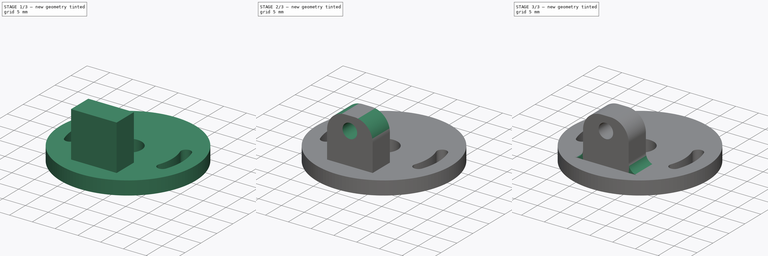
[diagram: build sequence overview — one tinted view per stage of 3, left to right]
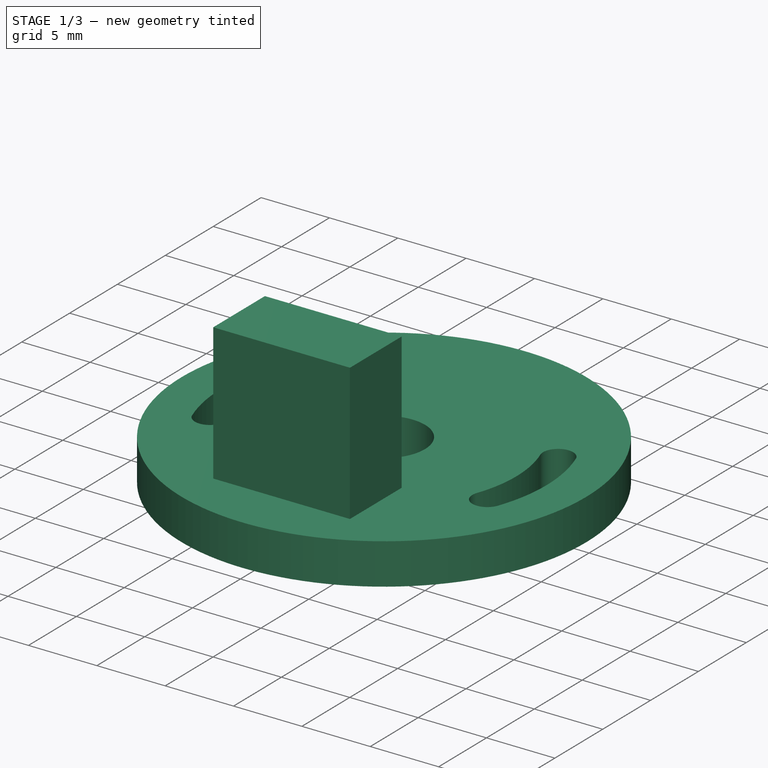
[diagram: stage 1 of 3 — iso view after this stage's code; geometry added in this stage tinted green]
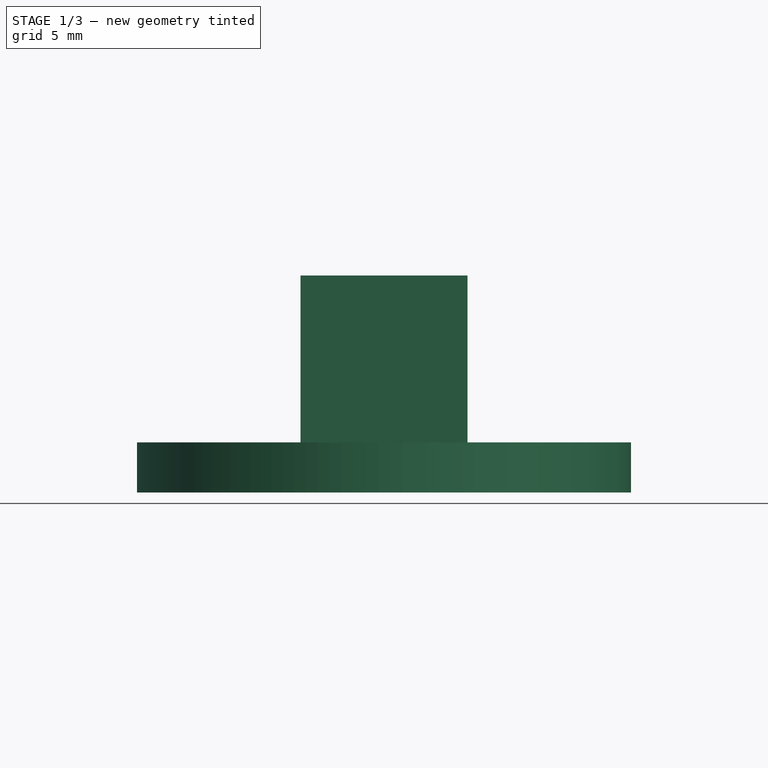
[diagram: stage 1 of 3 — front view after this stage's code; geometry added in this stage tinted green]
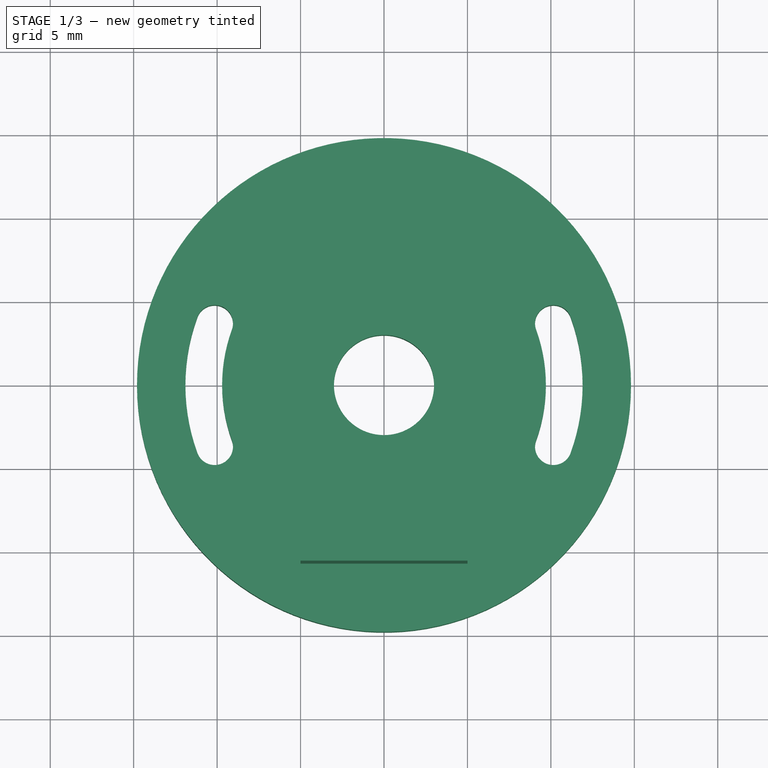
[diagram: stage 1 of 3 — top view after this stage's code; geometry added in this stage tinted green]
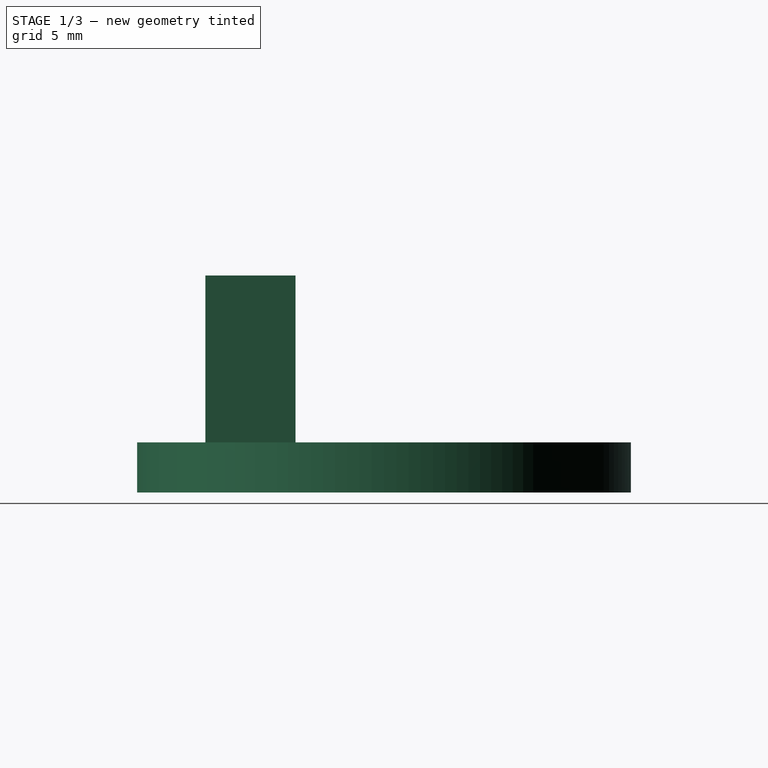
[diagram: stage 1 of 3 — right view after this stage's code; geometry added in this stage tinted green]
FCSTD DOCUMENT  (FreeCAD 0.16R6712 (Git))
Label: lidar_support
License: All rights reserved
LicenseURL: http://en.wikipedia.org/wiki/All_rights_reserved
objects: Sketcher::SketchObject×4, PartDesign::Fillet×4, PartDesign::Pad×2, PartDesign::Pocket×1
note: 14 computed .brp shape members not serialized (recipe doc carries the construction recipe); baked Part::Feature solids carry a one-line shape summary decoded from their .brp

FEATURE [Sketcher::SketchObject] Sketch
  sketch-geometry (27):
    g0: Circle CenterX=0 CenterY=0 CenterZ=0 NormalX=0 NormalY=0 NormalZ=1 Radius=14.8
    g1: Circle [constr] CenterX=0 CenterY=0 CenterZ=0 NormalX=0 NormalY=0 NormalZ=1 Radius=10.8
    g2: Circle [constr] CenterX=0 CenterY=0 CenterZ=0 NormalX=0 NormalY=0 NormalZ=1 Radius=11.9
    g3: Circle [constr] CenterX=0 CenterY=0 CenterZ=0 NormalX=0 NormalY=0 NormalZ=1 Radius=9.7
    g4: LineSegment [constr] StartX=-13.9075 StartY=5.0619 StartZ=0 EndX=13.9075 EndY=-5.0619 EndZ=0
    g5: LineSegment [constr] StartX=-13.9075 StartY=-5.0619 StartZ=0 EndX=13.9075 EndY=5.0619 EndZ=0
    g6: GeomPoint [constr] X=-11.1823 Y=4.07004 Z=0
    g7: GeomPoint [constr] X=-10.1487 Y=3.69382 Z=0
    g8: GeomPoint [constr] X=-9.11502 Y=3.3176 Z=0
    g9: GeomPoint [constr] X=-9.11502 Y=-3.3176 Z=0
    g10: GeomPoint [constr] X=-10.1487 Y=-3.69382 Z=0
    g11: GeomPoint [constr] X=-11.1823 Y=-4.07004 Z=0
    g12: GeomPoint [constr] X=9.11502 Y=-3.3176 Z=0
    g13: GeomPoint [constr] X=10.1487 Y=-3.69382 Z=0
    g14: GeomPoint [constr] X=11.1823 Y=-4.07004 Z=0
    g15: GeomPoint [constr] X=9.11502 Y=3.3176 Z=0
    g16: GeomPoint [constr] X=10.1487 Y=3.69382 Z=0
    g17: GeomPoint [constr] X=11.1823 Y=4.07004 Z=0
    g18: ArcOfCircle CenterX=-10.1487 CenterY=3.69382 CenterZ=0 NormalX=0 NormalY=0 NormalZ=1 Radius=1.1 StartAngle=5.93412 EndAngle=9.07571
    g19: ArcOfCircle CenterX=-10.1487 CenterY=-3.69382 CenterZ=0 NormalX=0 NormalY=0 NormalZ=1 Radius=1.1 StartAngle=3.49066 EndAngle=6.63225
    g20: ArcOfCircle CenterX=10.1487 CenterY=3.69382 CenterZ=0 NormalX=0 NormalY=0 NormalZ=1 Radius=1.1 StartAngle=0.349066 EndAngle=3.49066
    g21: ArcOfCircle CenterX=10.1487 CenterY=-3.69382 CenterZ=0 NormalX=0 NormalY=0 NormalZ=1 Radius=1.1 StartAngle=2.79253 EndAngle=5.93412
    g22: ArcOfCircle CenterX=0 CenterY=0 CenterZ=0 NormalX=0 NormalY=0 NormalZ=1 Radius=9.7 StartAngle=2.79253 EndAngle=3.49066
    g23: ArcOfCircle CenterX=0 CenterY=0 CenterZ=0 NormalX=0 NormalY=0 NormalZ=1 Radius=11.9 StartAngle=2.79253 EndAngle=3.49066
    g24: ArcOfCircle CenterX=0 CenterY=0 CenterZ=0 NormalX=0 NormalY=0 NormalZ=1 Radius=9.7 StartAngle=5.93412 EndAngle=6.63225
    g25: ArcOfCircle CenterX=0 CenterY=0 CenterZ=0 NormalX=0 NormalY=0 NormalZ=1 Radius=11.9 StartAngle=5.93412 EndAngle=6.63225
    g26: Circle CenterX=0 CenterY=0 CenterZ=0 NormalX=0 NormalY=0 NormalZ=1 Radius=3
  constraints (65):
    c: Coincident(g0,g-1)
    c: Radius(g0) = 14.8
    c: Coincident(g1,g-1)
    c: Coincident(g2,g-1)
    c: Radius(g1) = 10.8
    c: Radius(g2) = 11.9
    c: Coincident(g3,g-1)
    c: Radius(g3) = 9.7
    c: PointOnObject(g4,g0)
    c: PointOnObject(g4,g0)
    c: PointOnObject(g-1,g4)
    c: Angle(g4,g-1) = 0.349066
    c: PointOnObject(g5,g0)
    c: PointOnObject(g5,g0)
    c: PointOnObject(g-1,g5)
    c: Angle(g-1,g5) = 0.349066
    c: PointOnObject(g7,g1)
    c: PointOnObject(g9,g3)
    c: PointOnObject(g10,g1)
    c: PointOnObject(g11,g2)
    c: PointOnObject(g12,g3)
    c: PointOnObject(g13,g1)
    c: PointOnObject(g14,g2)
    c: PointOnObject(g15,g3)
    c: PointOnObject(g16,g1)
    c: PointOnObject(g6,g2)
    c: PointOnObject(g8,g3)
    c: PointOnObject(g6,g4)
    c: PointOnObject(g7,g4)
    c: PointOnObject(g8,g4)
    c: PointOnObject(g11,g5)
    c: PointOnObject(g10,g5)
    c: PointOnObject(g9,g5)
    c: PointOnObject(g12,g4)
    c: PointOnObject(g13,g4)
    c: PointOnObject(g14,g4)
    c: PointOnObject(g15,g5)
    c: PointOnObject(g16,g5)
    c: PointOnObject(g17,g5)
    c: Coincident(g18,g7)
    c: Coincident(g18,g6)
    c: Coincident(g18,g8)
    c: Coincident(g19,g10)
    c: Coincident(g19,g11)
    c: Coincident(g19,g9)
    c: Coincident(g20,g16)
    c: Coincident(g20,g15)
    c: Coincident(g20,g17)
    c: Coincident(g21,g13)
    c: Coincident(g21,g12)
    c: Coincident(g21,g14)
    c: Coincident(g22,g-1)
    c: Coincident(g22,g9)
    c: Coincident(g22,g8)
    c: Coincident(g23,g-1)
    c: Coincident(g23,g11)
    c: Coincident(g23,g6)
    c: Coincident(g24,g-1)
    c: Coincident(g24,g15)
    c: Coincident(g24,g12)
    c: Coincident(g25,g-1)
    c: Coincident(g25,g17)
    c: Coincident(g25,g14)
    c: Coincident(g26,g-1)
    c: Radius(g26) = 3
FEATURE [PartDesign::Pad] Pad
  Length = 3
  Length2 = 100
  Sketch = -> Sketch
  Type = 0
FEATURE [Sketcher::SketchObject] Sketch001
  Placement = pos=(0,0,0) rot=(-1,0,0;2.96706rad)
FEATURE [Sketcher::SketchObject] Sketch002
  Placement = pos=(0,0,3) rot=(0,0,1;0rad)
  Support = -> Pad [Face12]
  sketch-geometry (5):
    g0: LineSegment StartX=-5 StartY=-10.7 StartZ=0 EndX=5 EndY=-10.7 EndZ=0
    g1: LineSegment StartX=5 StartY=-10.7 StartZ=0 EndX=5 EndY=-5.3 EndZ=0
    g2: LineSegment StartX=5 StartY=-5.3 StartZ=0 EndX=-5 EndY=-5.3 EndZ=0
    g3: LineSegment StartX=-5 StartY=-5.3 StartZ=0 EndX=-5 EndY=-10.7 EndZ=0
    g4: GeomPoint [constr] X=0 Y=-10.7 Z=0
  constraints (14):
    c: Coincident(g0,g1)
    c: Coincident(g1,g2)
    c: Coincident(g2,g3)
    c: Coincident(g3,g0)
    c: Horizontal(g0)
    c: Horizontal(g2)
    c: Vertical(g1)
    c: Vertical(g3)
    c: PointOnObject(g4,g0)
    c: PointOnObject(g4,g-2)
    c: Symmetric(g0,g0,g4)
    c: DistanceY(g4,g-1) = 10.7
    c: DistanceY(g3,g3) = 5.4
    c: DistanceX(g0,g0) = 10
FEATURE [PartDesign::Pad] Pad001
  Length = 10
  Length2 = 100
  Sketch = -> Sketch002
  Type = 0
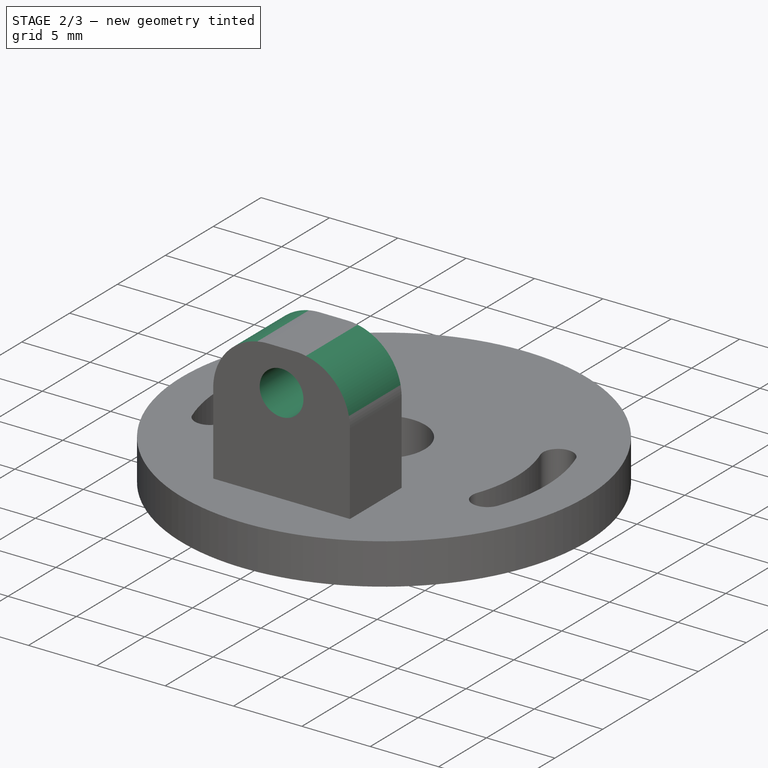
[diagram: stage 2 of 3 — iso view after this stage's code; geometry added in this stage tinted green]
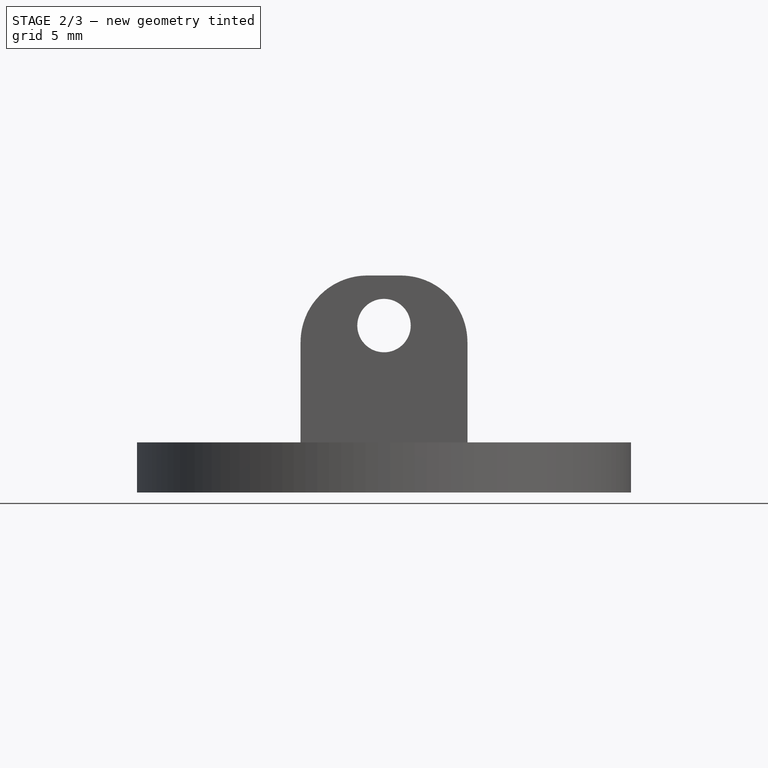
[diagram: stage 2 of 3 — front view after this stage's code; geometry added in this stage tinted green]
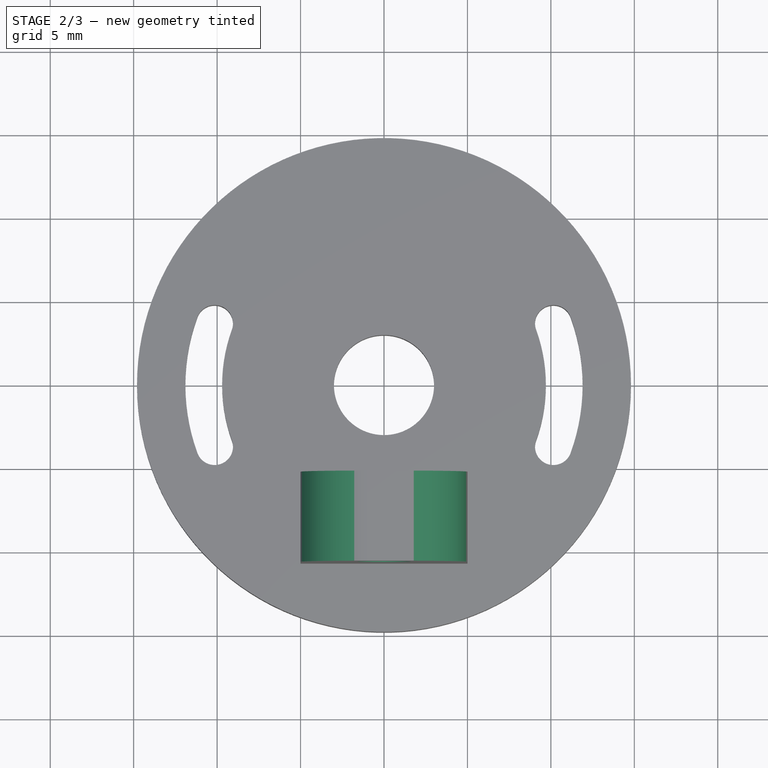
[diagram: stage 2 of 3 — top view after this stage's code; geometry added in this stage tinted green]
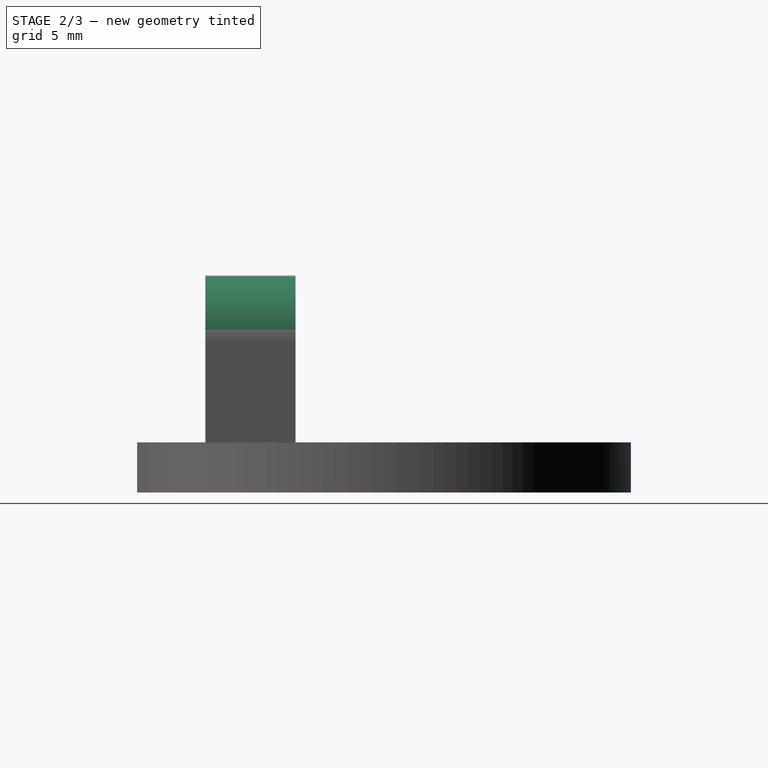
[diagram: stage 2 of 3 — right view after this stage's code; geometry added in this stage tinted green]
FEATURE [Sketcher::SketchObject] Sketch003
  ExternalGeometry = -> [Pad001]
  Placement = pos=(0,-5.3,0) rot=(0,0.707107,0.707107;3.14159rad)
  Support = -> Pad001 [Face14]
  sketch-geometry (1):
    g0: Circle CenterX=0 CenterY=10 CenterZ=0 NormalX=0 NormalY=0 NormalZ=1 Radius=1.6
  constraints (3):
    c: PointOnObject(g0,g-2)
    c: Radius(g0) = 1.6
    c: DistanceY(g0,g-3) = 3
FEATURE [PartDesign::Pocket] Pocket
  Length = 5
  Sketch = -> Sketch003
  Type = 2
FEATURE [PartDesign::Fillet] Fillet
  Base = -> Pocket [Edge42]
  Radius = 4
FEATURE [PartDesign::Fillet] Fillet001
  Base = -> Fillet [Edge25]
  Radius = 4
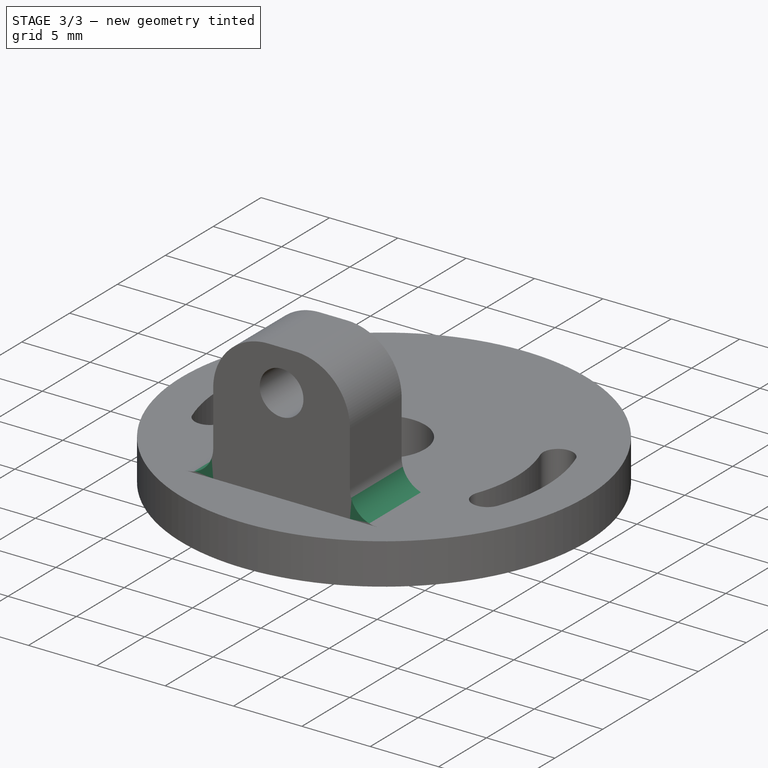
[diagram: stage 3 of 3 — iso view after this stage's code; geometry added in this stage tinted green]
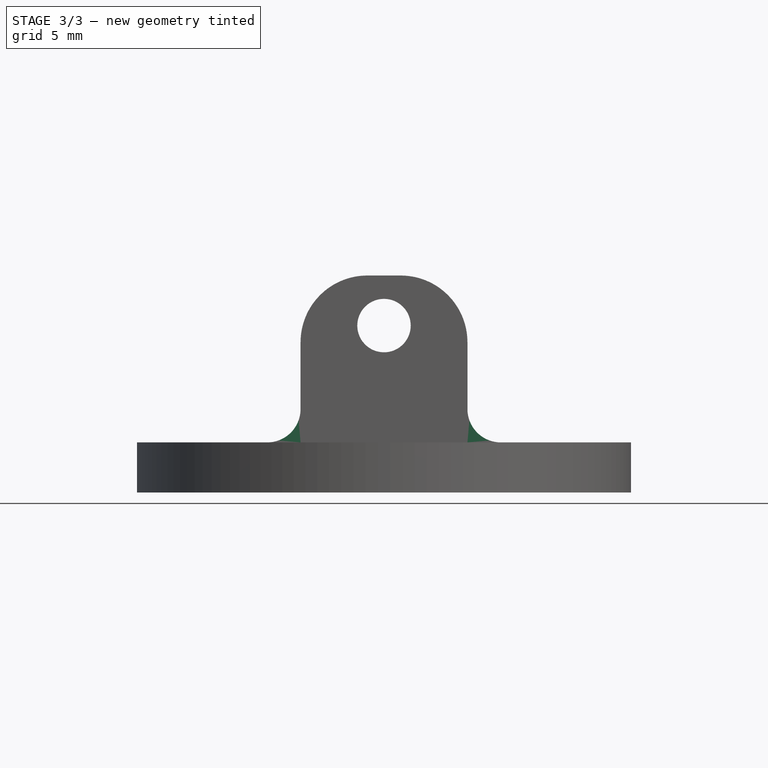
[diagram: stage 3 of 3 — front view after this stage's code; geometry added in this stage tinted green]
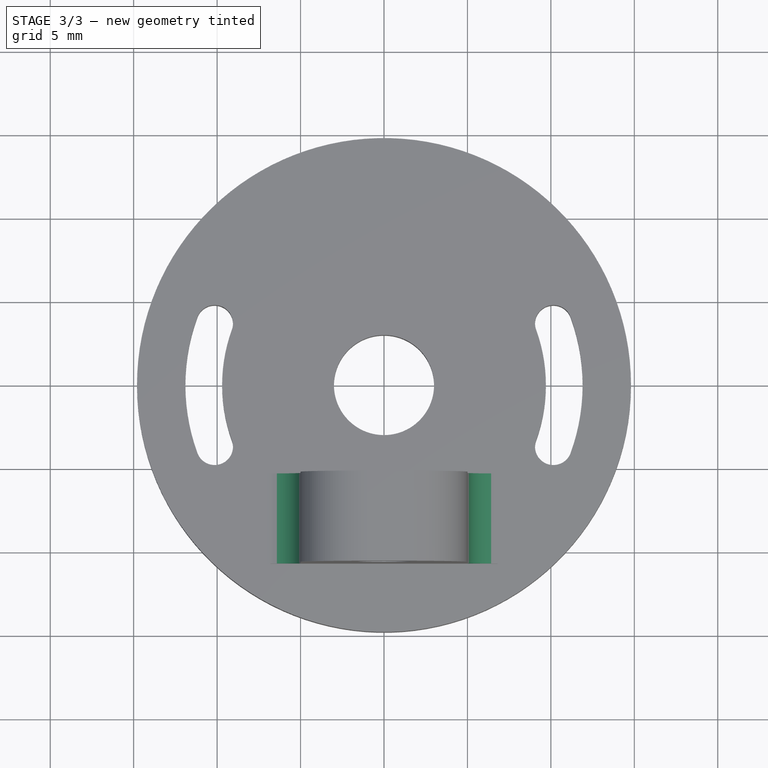
[diagram: stage 3 of 3 — top view after this stage's code; geometry added in this stage tinted green]
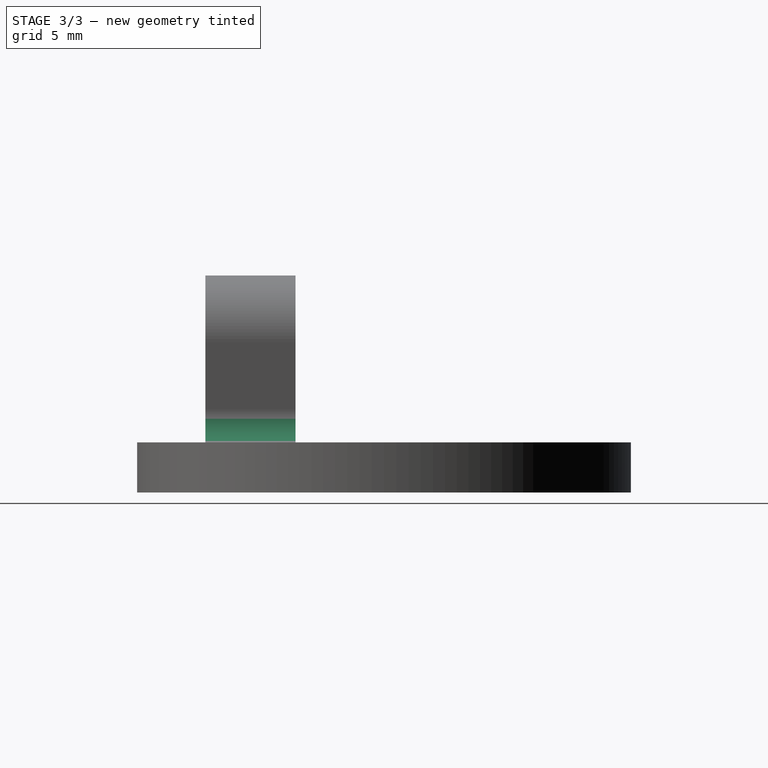
[diagram: stage 3 of 3 — right view after this stage's code; geometry added in this stage tinted green]
FEATURE [PartDesign::Fillet] Fillet002
  Base = -> Fillet001 [Edge18]
  Radius = 2
FEATURE [PartDesign::Fillet] Fillet003
  Base = -> Fillet002 [Edge19]
  Radius = 2
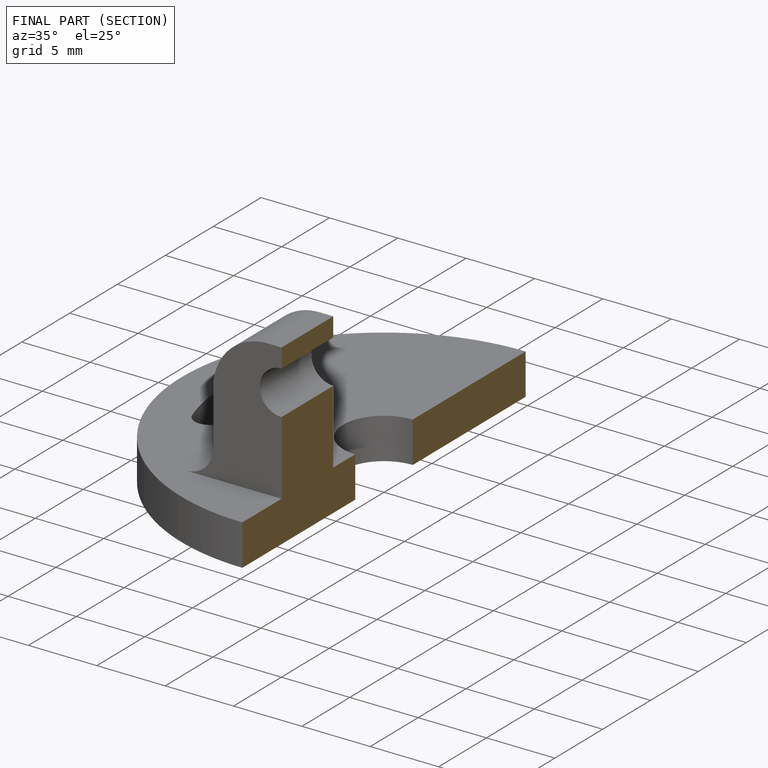
[diagram: finished part — half-section view (interior)]
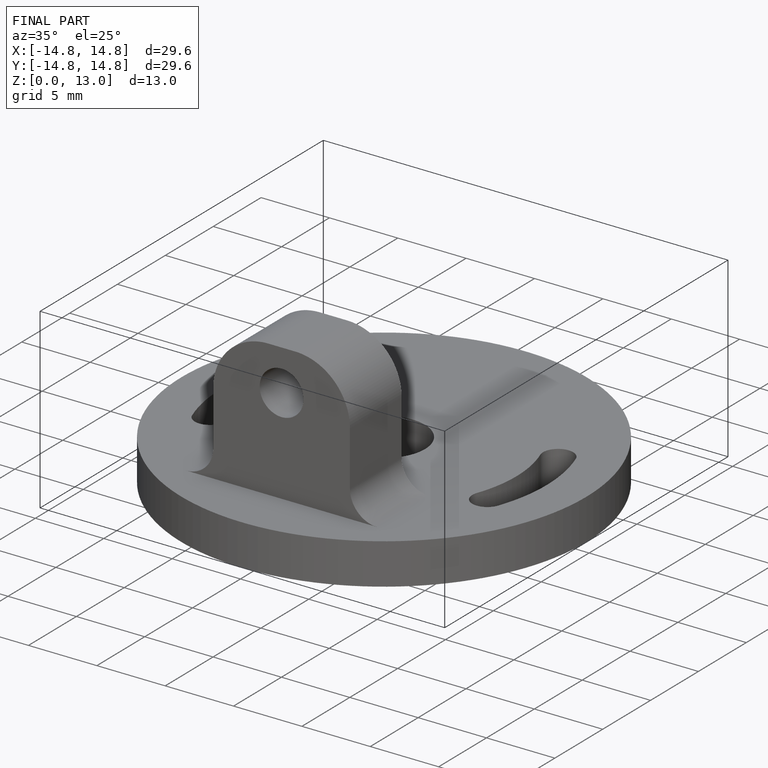
[diagram: finished part — iso view with bounding-box wireframe]
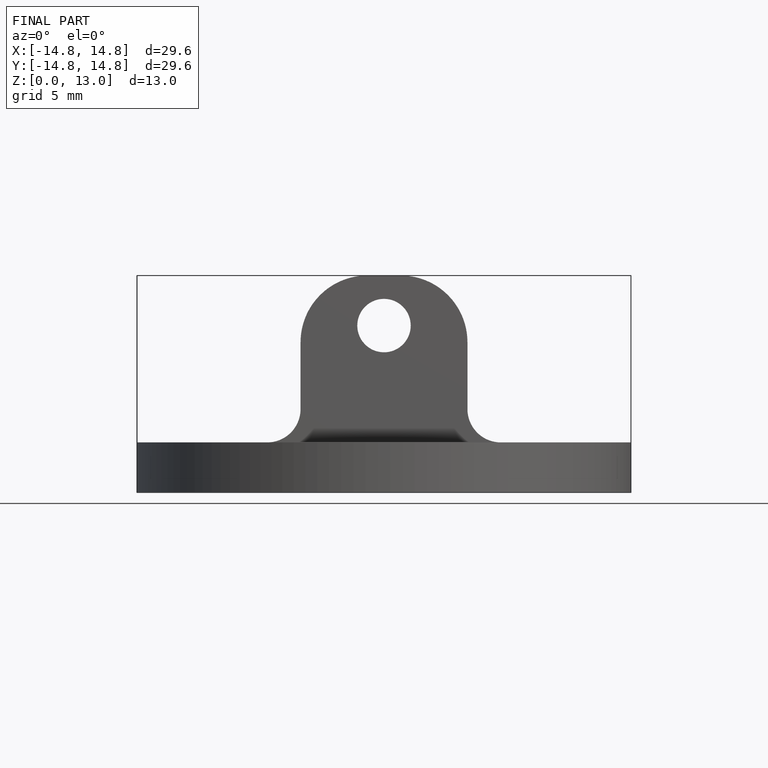
[diagram: finished part — front view with bounding-box wireframe]
